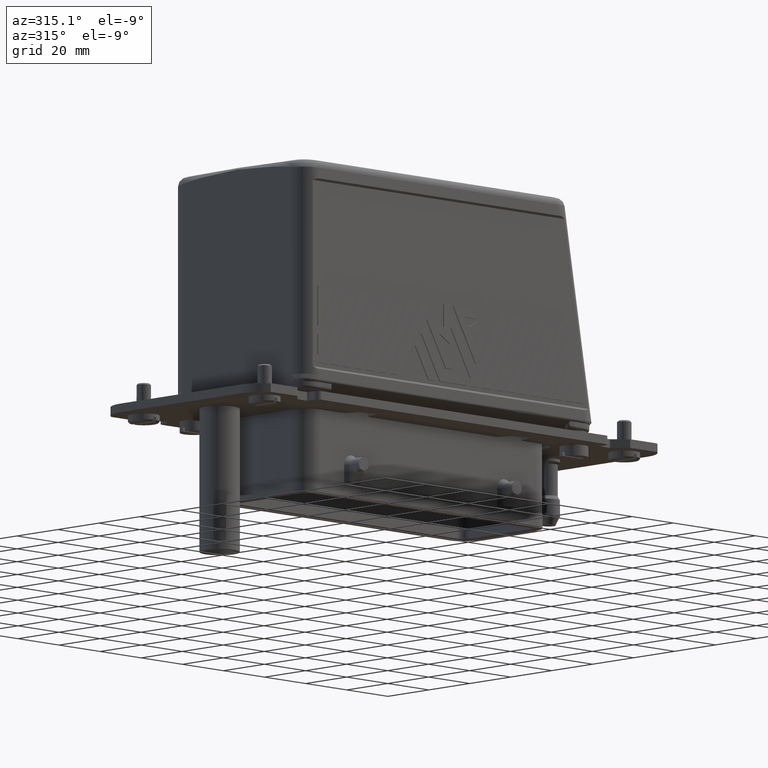
[diagram: clean part render]
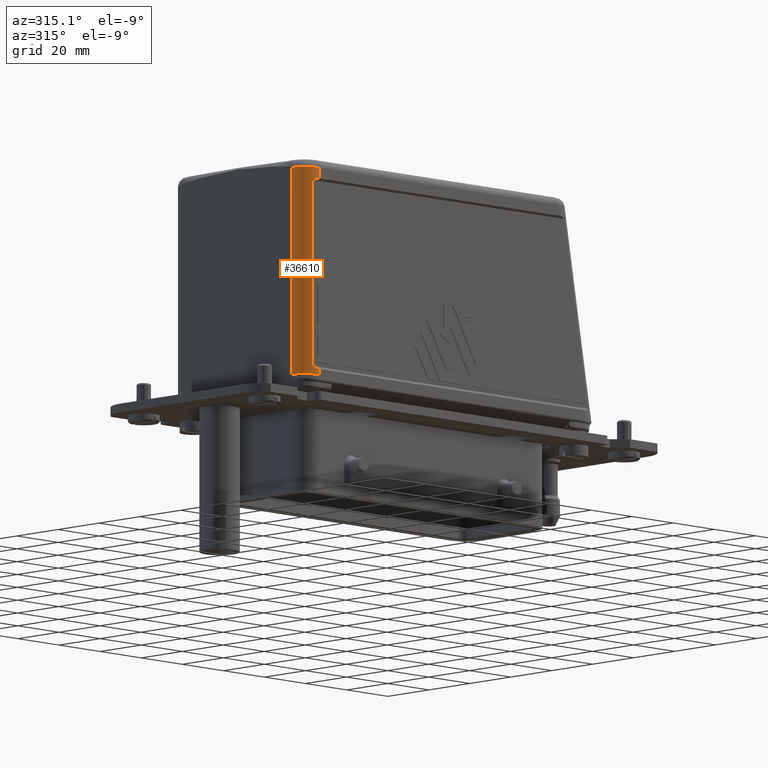
[diagram: same view with one face highlighted and labeled with its STEP entity id]
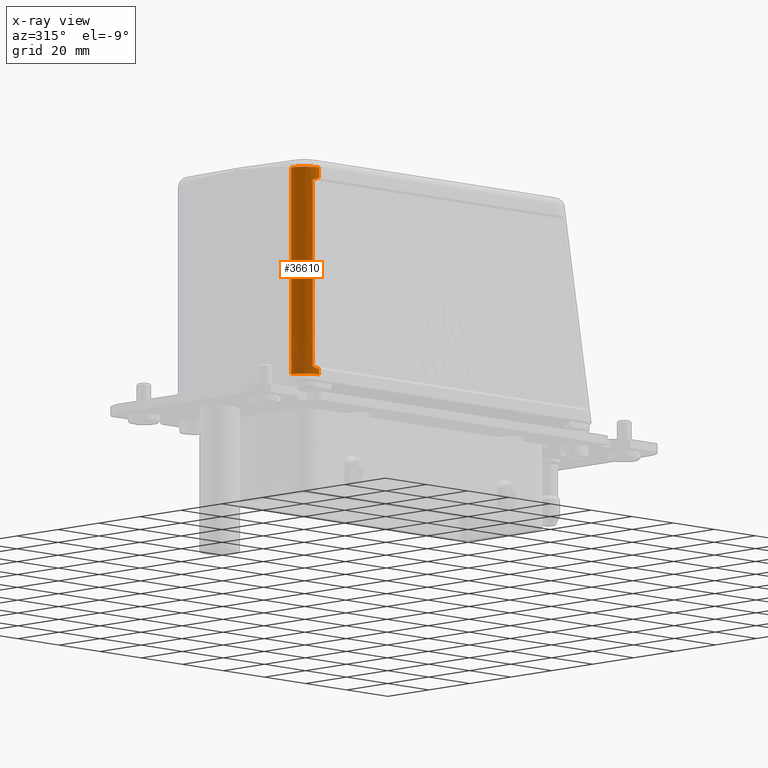
[diagram: x-ray of the same camera — body ghosted, the highlighted face saturated]
A machine part, auxiliary view. The second image highlights one B-rep face of the part: STEP entity #36610.
The next image is the same camera in x-ray: the body ghosted, the highlighted face saturated — about 0% of this face is hidden behind the body in this view.
In plain terms, the highlighted cylindrical surface (edge-blend (fillet) strip) has radius 7 mm, axis along (-0, -0, 1).
Its self-contained STEP definition (entity closure, byte-faithful):
#30880=CARTESIAN_POINT('',(13.6173136543451,122.011828051214,
-68.4044855420491));
#30890=VERTEX_POINT('',#30880);
#30920=CARTESIAN_POINT('',(13.6173136543451,-1.49213974509621E-13,
-68.4044855420491));
#30930=DIRECTION('',(6.22460558025955E-31,1.,-6.12323399573677E-17));
#30940=VECTOR('',#30930,1.);
#30950=LINE('',#30920,#30940);
#30960=CARTESIAN_POINT('',(13.6173136543451,125.749860699868,
-68.4044855420491));
#30970=VERTEX_POINT('',#30960);
#30980=EDGE_CURVE('',#30890,#30970,#30950,.T.);
#35810=CARTESIAN_POINT('',(20.6173136543451,-1.49213974509621E-13,
-68.4044855420491));
#35820=DIRECTION('',(1.24492111605191E-30,1.,-6.12323399573677E-17));
#35830=DIRECTION('',(0.,-6.12323399573677E-17,-1.));
#35840=AXIS2_PLACEMENT_3D('',#35810,#35820,#35830);
#35850=CYLINDRICAL_SURFACE('',#35840,7.);
#35860=ORIENTED_EDGE('',*,*,#30980,.T.);
#35870=CARTESIAN_POINT('',(20.6173136543491,111.511828051176,
-68.4044855420344));
#35880=DIRECTION('',(0.832050294337843,0.55470019622523,
4.2378212989054E-14));
#35890=DIRECTION('',(-0.55470019622523,0.832050294337843,
-2.83257341065137E-14));
#35900=AXIS2_PLACEMENT_3D('',#35870,#35880,#35890);
#35910=ELLIPSE('',#35900,12.6194294641239,7.);
#35920=CARTESIAN_POINT('',(14.117312704226,121.261829476397,
-71.0025593763446));
#35930=VERTEX_POINT('',#35920);
#35940=EDGE_CURVE('',#35930,#30890,#35910,.T.);
#35950=ORIENTED_EDGE('',*,*,#35940,.T.);
#35960=CARTESIAN_POINT('',(14.117312704226,-1.49373060649877E-13,
-71.0025593763446));
#35970=DIRECTION('',(1.24492111605191E-30,1.,-6.12323399573677E-17));
#35980=VECTOR('',#35970,1.);
#35990=LINE('',#35960,#35980);
#36000=CARTESIAN_POINT('',(14.117312704226,56.2866079999979,
-71.0025593763446));
#36010=VERTEX_POINT('',#36000);
#36020=EDGE_CURVE('',#36010,#35930,#35990,.T.);
#36030=ORIENTED_EDGE('',*,*,#36020,.T.);
#36040=CARTESIAN_POINT('',(20.6173136543451,66.0366094251767,
-68.4044855420491));
#36050=DIRECTION('',(-0.832050294337841,0.554700196225233,
-4.23782129890539E-14));
#36060=DIRECTION('',(-0.554700196225233,-0.832050294337841,
-2.81785498788919E-14));
#36070=AXIS2_PLACEMENT_3D('',#36040,#36050,#36060);
#36080=ELLIPSE('',#36070,12.6194294641239,7.);
#36090=CARTESIAN_POINT('',(13.6173136543451,55.5366094251797,
-68.4044855420491));
#36100=VERTEX_POINT('',#36090);
#36110=EDGE_CURVE('',#36010,#36100,#36080,.T.);
#36120=ORIENTED_EDGE('',*,*,#36110,.F.);
#36130=CARTESIAN_POINT('',(13.6173136543433,10.0000000000021,
-68.404485542049));
#36140=DIRECTION('',(1.24492111605191E-30,1.,-6.12323399573677E-17));
#36150=VECTOR('',#36140,1.);
#36160=LINE('',#36130,#36150);
#36170=CARTESIAN_POINT('',(13.6173136543451,53.536608,-68.404485542049))
;
#36180=VERTEX_POINT('',#36170);
#36190=EDGE_CURVE('',#36180,#36100,#36160,.T.);
#36200=ORIENTED_EDGE('',*,*,#36190,.T.);
#36210=CARTESIAN_POINT('',(20.6173136543451,53.536608,-68.4044855420491)
);
#36220=DIRECTION('',(1.24492111605191E-30,1.,-6.12323399573677E-17));
#36230=DIRECTION('',(0.,-6.12323399573677E-17,-1.));
#36240=AXIS2_PLACEMENT_3D('',#36210,#36220,#36230);
#36250=CIRCLE('',#36240,7.);
#36260=CARTESIAN_POINT('',(20.1250300370946,53.536608,-75.3871538601197)
);
#36270=VERTEX_POINT('',#36260);
#36280=EDGE_CURVE('',#36270,#36180,#36250,.T.);
#36290=ORIENTED_EDGE('',*,*,#36280,.T.);
#36300=CARTESIAN_POINT('',(20.1250300370946,-1.49641539629883E-13,
-75.3871538601197));
#36310=DIRECTION('',(1.24492111605191E-30,1.,-6.12323399573677E-17));
#36320=VECTOR('',#36310,1.);
#36330=LINE('',#36300,#36320);
#36340=CARTESIAN_POINT('',(20.1250300370946,125.78231349367,
-75.3871538601197));
#36350=VERTEX_POINT('',#36340);
#36360=EDGE_CURVE('',#36270,#36350,#36330,.T.);
#36370=ORIENTED_EDGE('',*,*,#36360,.F.);
#36380=CARTESIAN_POINT('',(20.4312502468409,125.783840313453,
-75.4020122771454));
#36390=CARTESIAN_POINT('',(20.2157432506472,125.782766220458,
-75.3962819716288));
#36400=CARTESIAN_POINT('',(20.000592414039,125.7816927169,
-75.3805962644464));
#36410=CARTESIAN_POINT('',(19.2893925814638,125.778146118665,
-75.2955906505495));
#36420=CARTESIAN_POINT('',(18.7998141679905,125.775704698044,
-75.1829695039752));
#36430=CARTESIAN_POINT('',(17.7799296082577,125.770618756493,
-74.8297129400369));
#36440=CARTESIAN_POINT('',(17.2591395251436,125.768021690091,
-74.5735182912122));
#36450=CARTESIAN_POINT('',(16.2924768421694,125.763201154416,
-73.9389284678815));
#36460=CARTESIAN_POINT('',(15.8503238753923,125.760996234139,
-73.5629818720933));
#36470=CARTESIAN_POINT('',(15.0685628454086,125.757097762623,
-72.710950708143));
#36480=CARTESIAN_POINT('',(14.7319654673939,125.755419225013,
-72.2381467560092));
#36490=CARTESIAN_POINT('',(14.182724881735,125.75268028217,
-71.2205726926845));
#36500=CARTESIAN_POINT('',(13.9721961792441,125.751630421511,
-70.6797209116013));
#36510=CARTESIAN_POINT('',(13.7415518763727,125.750480248747,
-69.7668244265719));
#36520=CARTESIAN_POINT('',(13.6801859882983,125.750174230465,
-69.4084054100029));
#36530=CARTESIAN_POINT('',(13.6271809898445,125.749909906115,
-68.8335288486683));
#36540=CARTESIAN_POINT('',(13.6173136543451,125.749875985687,
-68.6190553776822));
#36550=CARTESIAN_POINT('',(13.6173136543451,125.749860699868,
-68.4044855420491));
#36560=B_SPLINE_CURVE_WITH_KNOTS('',3,(#36380,#36390,#36400,#36410,
#36420,#36430,#36440,#36450,#36460,#36470,#36480,#36490,#36500,#36510,
#36520,#36530,#36540,#36550),.UNSPECIFIED.,.F.,.F.,(4,2,2,2,2,2,2,2,4),(
0.,0.507316665925092,1.68571422783982,3.04525142138567,4.40473454316518,
5.76422137955659,7.12370400163032,7.97820897643295,8.48359855260101),
.UNSPECIFIED.);
#36570=EDGE_CURVE('',#36350,#30970,#36560,.T.);
#36580=ORIENTED_EDGE('',*,*,#36570,.F.);
#36590=EDGE_LOOP('',(#36580,#36370,#36290,#36200,#36120,#36030,#35950,
#35860));
#36600=FACE_OUTER_BOUND('',#36590,.T.);
#36610=ADVANCED_FACE('',(#36600),#35850,.T.);